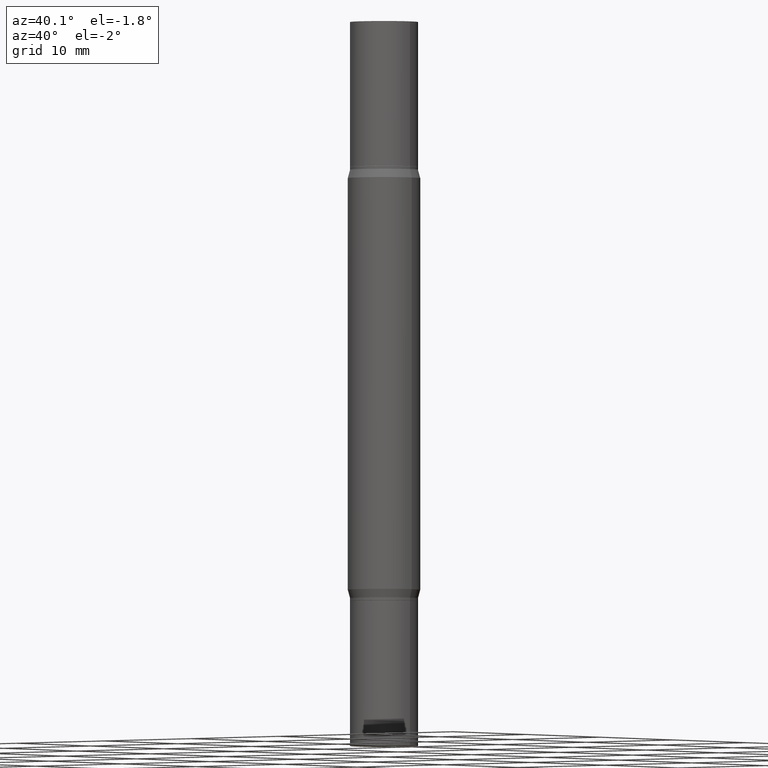
[diagram: clean part render]
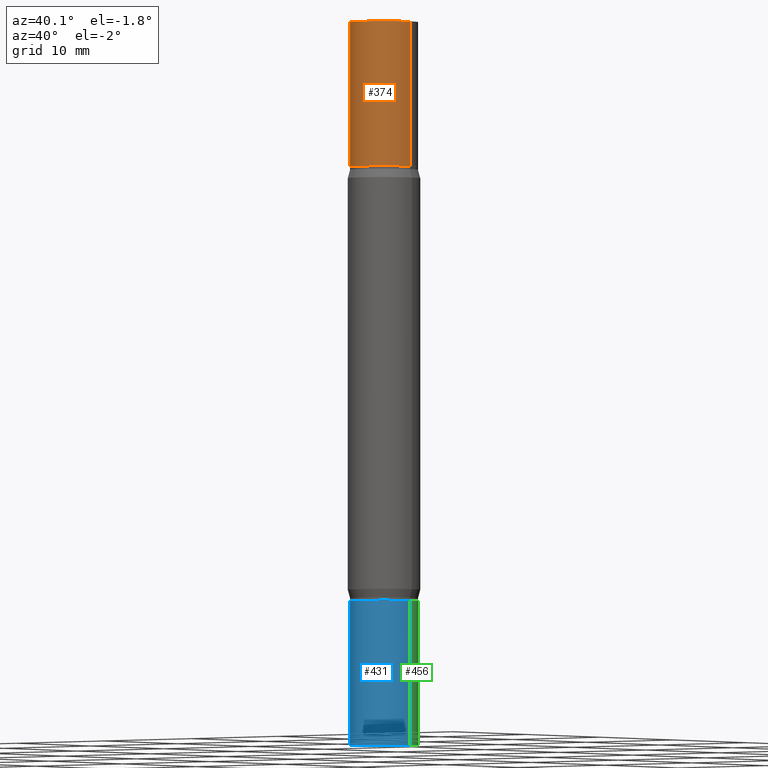
[diagram: same view with three faces highlighted in distinct colors, each labeled with its STEP entity id]
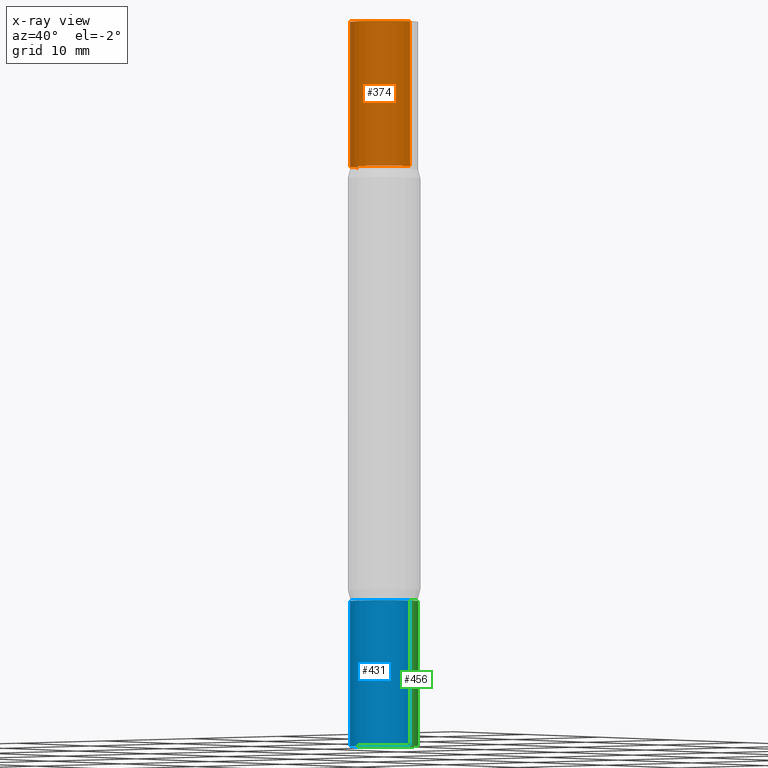
[diagram: x-ray of the same camera — body ghosted, the three highlighted faces saturated]
A machine part, auxiliary view with three faces highlighted in distinct colors.
The next image is the same camera in x-ray (body ghosted, the three faces saturated) — at least one of them is partly hidden behind the body in this view.
Their STEP definitions:

[orange] entity #374 — the highlighted cylindrical surface (edge-blend (fillet) strip) has radius 2.9769 mm, axis along (-0, -0, -1).
#1 = DIRECTION ( 'NONE',  ( 2.445468806185136597E-29, 3.491805094961124077E-15, 1.000000000000000000 ) ) ;
#10 = FACE_OUTER_BOUND ( 'NONE', #52, .T. ) ;
#40 = CIRCLE ( 'NONE', #335, 0.1171999999999999986 ) ;
#52 = EDGE_LOOP ( 'NONE', ( #915, #182, #651, #608 ) ) ;
#99 = LINE ( 'NONE', #923, #755 ) ;
#127 = CARTESIAN_POINT ( 'NONE',  ( 0.1171999999999999986, -2.563901078157915826E-15, -0.4999999999999993339 ) ) ;
#142 = EDGE_CURVE ( 'NONE', #931, #386, #99, .T. ) ;
#182 = ORIENTED_EDGE ( 'NONE', *, *, #142, .T. ) ;
#207 = VERTEX_POINT ( 'NONE', #127 ) ;
#225 = DIRECTION ( 'NONE',  ( 1.000000000000000000, -6.982962677686269866E-15, 0.000000000000000000 ) ) ;
#264 = CIRCLE ( 'NONE', #521, 0.1171999999999999986 ) ;
#283 = VECTOR ( 'NONE', #836, 39.37007874015748143 ) ;
#305 = CARTESIAN_POINT ( 'NONE',  ( 0.1171999999999999986, -9.547511268080165952E-15, -2.499999999999999556 ) ) ;
#312 = DIRECTION ( 'NONE',  ( 2.445468806185136597E-29, 3.491805094961124077E-15, 1.000000000000000000 ) ) ;
#321 = CYLINDRICAL_SURFACE ( 'NONE', #895, 0.1171999999999999986 ) ;
#322 = EDGE_CURVE ( 'NONE', #943, #207, #674, .T. ) ;
#335 = AXIS2_PLACEMENT_3D ( 'NONE', #751, #312, #378 ) ;
#373 = EDGE_CURVE ( 'NONE', #386, #207, #264, .T. ) ;
#374 = ADVANCED_FACE ( 'NONE', ( #10 ), #321, .T. ) ;
#378 = DIRECTION ( 'NONE',  ( 1.000000000000000000, -6.982962677686266711E-15, 0.000000000000000000 ) ) ;
#386 = VERTEX_POINT ( 'NONE', #972 ) ;
#426 = EDGE_CURVE ( 'NONE', #931, #943, #40, .T. ) ;
#517 = CARTESIAN_POINT ( 'NONE',  ( 0.1171999999999999986, -8.179985306773559567E-16, 5.463695987328526437E-16 ) ) ;
#521 = AXIS2_PLACEMENT_3D ( 'NONE', #825, #1, #976 ) ;
#607 = DIRECTION ( 'NONE',  ( -2.445468806185136597E-29, -3.491805094961124077E-15, -1.000000000000000000 ) ) ;
#608 = ORIENTED_EDGE ( 'NONE', *, *, #322, .F. ) ;
#651 = ORIENTED_EDGE ( 'NONE', *, *, #373, .T. ) ;
#666 = CARTESIAN_POINT ( 'NONE',  ( 0.000000000000000000, -8.729108042255335103E-15, -2.499999999999999556 ) ) ;
#674 = LINE ( 'NONE', #305, #283 ) ;
#702 = DIRECTION ( 'NONE',  ( -2.445468806185136877E-29, -3.491805094961123683E-15, -1.000000000000000000 ) ) ;
#751 = CARTESIAN_POINT ( 'NONE',  ( 6.113672015462842613E-29, 4.046951474745467748E-19, 5.463695987328526437E-16 ) ) ;
#755 = VECTOR ( 'NONE', #702, 39.37007874015748143 ) ;
#810 = CARTESIAN_POINT ( 'NONE',  ( -0.1171999999999999986, -6.849621325398194571E-17, 5.463695987328557991E-16 ) ) ;
#825 = CARTESIAN_POINT ( 'NONE',  ( 4.890937612370273754E-29, -1.745497852333085568E-15, -0.4999999999999993339 ) ) ;
#836 = DIRECTION ( 'NONE',  ( -2.445468806185136877E-29, -3.491805094961123683E-15, -1.000000000000000000 ) ) ;
#895 = AXIS2_PLACEMENT_3D ( 'NONE', #666, #607, #225 ) ;
#915 = ORIENTED_EDGE ( 'NONE', *, *, #426, .F. ) ;
#923 = CARTESIAN_POINT ( 'NONE',  ( -0.1171999999999999986, -7.925057676916510614E-15, -2.499999999999999556 ) ) ;
#931 = VERTEX_POINT ( 'NONE', #810 ) ;
#943 = VERTEX_POINT ( 'NONE', #517 ) ;
#972 = CARTESIAN_POINT ( 'NONE',  ( -0.1171999999999999986, -6.849621325398205664E-17, -0.4999999999999993339 ) ) ;
#976 = DIRECTION ( 'NONE',  ( 1.000000000000000000, -6.982962677686265922E-15, 0.000000000000000000 ) ) ;

[blue] entity #431 — the highlighted cylindrical surface (edge-blend (fillet) strip) has radius 2.9769 mm, axis along (-0, 0, 1).
#62 = ORIENTED_EDGE ( 'NONE', *, *, #689, .T. ) ;
#75 = DIRECTION ( 'NONE',  ( -2.445468806185136597E-29, 3.491481338843145583E-15, 1.000000000000000000 ) ) ;
#98 = EDGE_CURVE ( 'NONE', #740, #665, #262, .T. ) ;
#205 = AXIS2_PLACEMENT_3D ( 'NONE', #240, #75, #390 ) ;
#226 = ORIENTED_EDGE ( 'NONE', *, *, #98, .T. ) ;
#228 = EDGE_CURVE ( 'NONE', #813, #748, #475, .T. ) ;
#234 = DIRECTION ( 'NONE',  ( -2.445468806185136877E-29, 3.491481338843145188E-15, 1.000000000000000000 ) ) ;
#240 = CARTESIAN_POINT ( 'NONE',  ( 0.000000000000000000, 0.000000000000000000, 0.000000000000000000 ) ) ;
#245 = DIRECTION ( 'NONE',  ( -2.445468806185136597E-29, 3.491481338843145583E-15, 1.000000000000000000 ) ) ;
#257 = CARTESIAN_POINT ( 'NONE',  ( -0.1171999999999999986, 8.327560863108374081E-16, -5.764991925778749121E-30 ) ) ;
#262 = CIRCLE ( 'NONE', #821, 0.1171999999999999986 ) ;
#339 = CARTESIAN_POINT ( 'NONE',  ( -0.1171999999999999986, -7.023076926086241238E-15, -2.000000000000000444 ) ) ;
#342 = CARTESIAN_POINT ( 'NONE',  ( 0.1171999999999999986, -7.801365903511122804E-15, -2.000000000000000444 ) ) ;
#390 = DIRECTION ( 'NONE',  ( 1.000000000000000000, -6.982962677686266711E-15, 4.876176775795935793E-29 ) ) ;
#417 = CARTESIAN_POINT ( 'NONE',  ( -0.1171999999999999986, -7.023076926086241238E-15, -2.500000000000000000 ) ) ;
#431 = ADVANCED_FACE ( 'NONE', ( #604 ), #757, .T. ) ;
#433 = ORIENTED_EDGE ( 'NONE', *, *, #228, .F. ) ;
#470 = CARTESIAN_POINT ( 'NONE',  ( 0.1171999999999999986, -9.547106572932694215E-15, -2.500000000000000000 ) ) ;
#475 = CIRCLE ( 'NONE', #551, 0.1171999999999999986 ) ;
#489 = CARTESIAN_POINT ( 'NONE',  ( 6.113672015462842613E-29, -8.728703347107864943E-15, -2.500000000000000000 ) ) ;
#503 = DIRECTION ( 'NONE',  ( 1.000000000000000000, -6.982962677686269866E-15, 0.000000000000000000 ) ) ;
#523 = VECTOR ( 'NONE', #721, 39.37007874015748143 ) ;
#551 = AXIS2_PLACEMENT_3D ( 'NONE', #576, #882, #503 ) ;
#557 = LINE ( 'NONE', #920, #648 ) ;
#576 = CARTESIAN_POINT ( 'NONE',  ( 4.890937612370273754E-29, -6.982962677686291954E-15, -2.000000000000000444 ) ) ;
#604 = FACE_OUTER_BOUND ( 'NONE', #788, .T. ) ;
#626 = DIRECTION ( 'NONE',  ( 1.000000000000000000, -6.982962677686261977E-15, 0.000000000000000000 ) ) ;
#648 = VECTOR ( 'NONE', #234, 39.37007874015748143 ) ;
#665 = VERTEX_POINT ( 'NONE', #470 ) ;
#689 = EDGE_CURVE ( 'NONE', #665, #748, #557, .T. ) ;
#721 = DIRECTION ( 'NONE',  ( -2.445468806185136877E-29, 3.491481338843145188E-15, 1.000000000000000000 ) ) ;
#740 = VERTEX_POINT ( 'NONE', #417 ) ;
#748 = VERTEX_POINT ( 'NONE', #342 ) ;
#757 = CYLINDRICAL_SURFACE ( 'NONE', #205, 0.1171999999999999986 ) ;
#765 = ORIENTED_EDGE ( 'NONE', *, *, #819, .F. ) ;
#788 = EDGE_LOOP ( 'NONE', ( #765, #226, #62, #433 ) ) ;
#803 = LINE ( 'NONE', #257, #523 ) ;
#813 = VERTEX_POINT ( 'NONE', #339 ) ;
#819 = EDGE_CURVE ( 'NONE', #740, #813, #803, .T. ) ;
#821 = AXIS2_PLACEMENT_3D ( 'NONE', #489, #245, #626 ) ;
#882 = DIRECTION ( 'NONE',  ( -2.445468806185136597E-29, 3.491481338843145583E-15, 1.000000000000000000 ) ) ;
#920 = CARTESIAN_POINT ( 'NONE',  ( 0.1171999999999999986, -8.184032258248304553E-16, 5.714879181232836475E-30 ) ) ;

[green] entity #456 — the highlighted cylindrical surface (edge-blend (fillet) strip) has radius 2.9769 mm, axis along (-0, 0, 1).
#110 = DIRECTION ( 'NONE',  ( -2.445468806185136597E-29, 3.491481338843145583E-15, 1.000000000000000000 ) ) ;
#153 = ORIENTED_EDGE ( 'NONE', *, *, #980, .T. ) ;
#155 = DIRECTION ( 'NONE',  ( -2.445468806185136597E-29, 3.491481338843145583E-15, 1.000000000000000000 ) ) ;
#167 = CYLINDRICAL_SURFACE ( 'NONE', #598, 0.1171999999999999986 ) ;
#219 = DIRECTION ( 'NONE',  ( 1.000000000000000000, -6.982962677686261977E-15, 0.000000000000000000 ) ) ;
#224 = CARTESIAN_POINT ( 'NONE',  ( 4.890937612370273754E-29, -6.982962677686291954E-15, -2.000000000000000444 ) ) ;
#234 = DIRECTION ( 'NONE',  ( -2.445468806185136877E-29, 3.491481338843145188E-15, 1.000000000000000000 ) ) ;
#257 = CARTESIAN_POINT ( 'NONE',  ( -0.1171999999999999986, 8.327560863108374081E-16, -5.764991925778749121E-30 ) ) ;
#267 = AXIS2_PLACEMENT_3D ( 'NONE', #291, #592, #219 ) ;
#287 = CIRCLE ( 'NONE', #267, 0.1171999999999999986 ) ;
#291 = CARTESIAN_POINT ( 'NONE',  ( 6.113672015462842613E-29, -8.728703347107864943E-15, -2.500000000000000000 ) ) ;
#339 = CARTESIAN_POINT ( 'NONE',  ( -0.1171999999999999986, -7.023076926086241238E-15, -2.000000000000000444 ) ) ;
#342 = CARTESIAN_POINT ( 'NONE',  ( 0.1171999999999999986, -7.801365903511122804E-15, -2.000000000000000444 ) ) ;
#417 = CARTESIAN_POINT ( 'NONE',  ( -0.1171999999999999986, -7.023076926086241238E-15, -2.500000000000000000 ) ) ;
#437 = AXIS2_PLACEMENT_3D ( 'NONE', #224, #155, #754 ) ;
#444 = ORIENTED_EDGE ( 'NONE', *, *, #819, .T. ) ;
#456 = ADVANCED_FACE ( 'NONE', ( #502 ), #167, .T. ) ;
#470 = CARTESIAN_POINT ( 'NONE',  ( 0.1171999999999999986, -9.547106572932694215E-15, -2.500000000000000000 ) ) ;
#471 = CARTESIAN_POINT ( 'NONE',  ( 0.000000000000000000, 0.000000000000000000, 0.000000000000000000 ) ) ;
#502 = FACE_OUTER_BOUND ( 'NONE', #959, .T. ) ;
#523 = VECTOR ( 'NONE', #721, 39.37007874015748143 ) ;
#527 = ORIENTED_EDGE ( 'NONE', *, *, #689, .F. ) ;
#557 = LINE ( 'NONE', #920, #648 ) ;
#592 = DIRECTION ( 'NONE',  ( -2.445468806185136597E-29, 3.491481338843145583E-15, 1.000000000000000000 ) ) ;
#593 = EDGE_CURVE ( 'NONE', #748, #813, #615, .T. ) ;
#598 = AXIS2_PLACEMENT_3D ( 'NONE', #471, #110, #646 ) ;
#615 = CIRCLE ( 'NONE', #437, 0.1171999999999999986 ) ;
#646 = DIRECTION ( 'NONE',  ( 1.000000000000000000, -6.982962677686266711E-15, 4.876176775795935793E-29 ) ) ;
#648 = VECTOR ( 'NONE', #234, 39.37007874015748143 ) ;
#665 = VERTEX_POINT ( 'NONE', #470 ) ;
#667 = ORIENTED_EDGE ( 'NONE', *, *, #593, .F. ) ;
#689 = EDGE_CURVE ( 'NONE', #665, #748, #557, .T. ) ;
#721 = DIRECTION ( 'NONE',  ( -2.445468806185136877E-29, 3.491481338843145188E-15, 1.000000000000000000 ) ) ;
#740 = VERTEX_POINT ( 'NONE', #417 ) ;
#748 = VERTEX_POINT ( 'NONE', #342 ) ;
#754 = DIRECTION ( 'NONE',  ( 1.000000000000000000, -6.982962677686269866E-15, 0.000000000000000000 ) ) ;
#803 = LINE ( 'NONE', #257, #523 ) ;
#813 = VERTEX_POINT ( 'NONE', #339 ) ;
#819 = EDGE_CURVE ( 'NONE', #740, #813, #803, .T. ) ;
#920 = CARTESIAN_POINT ( 'NONE',  ( 0.1171999999999999986, -8.184032258248304553E-16, 5.714879181232836475E-30 ) ) ;
#959 = EDGE_LOOP ( 'NONE', ( #153, #444, #667, #527 ) ) ;
#980 = EDGE_CURVE ( 'NONE', #665, #740, #287, .T. ) ;